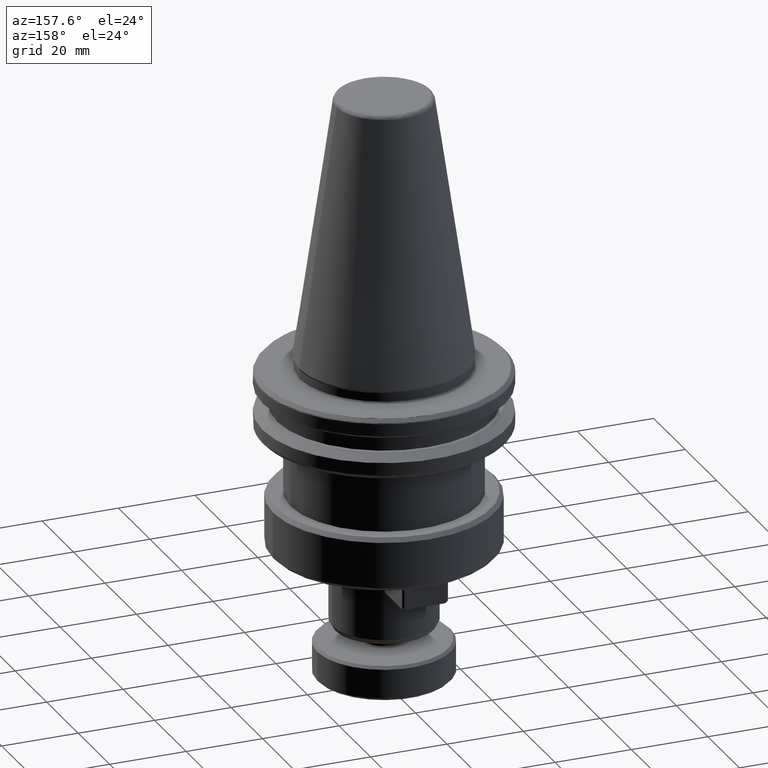
[diagram: clean part render]
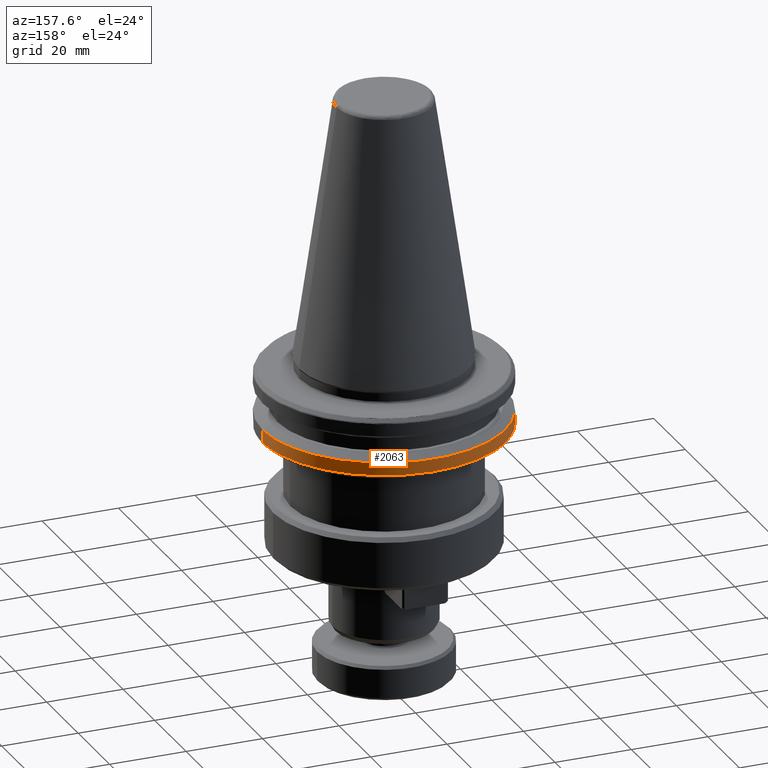
[diagram: same view with one face highlighted and labeled with its STEP entity id]
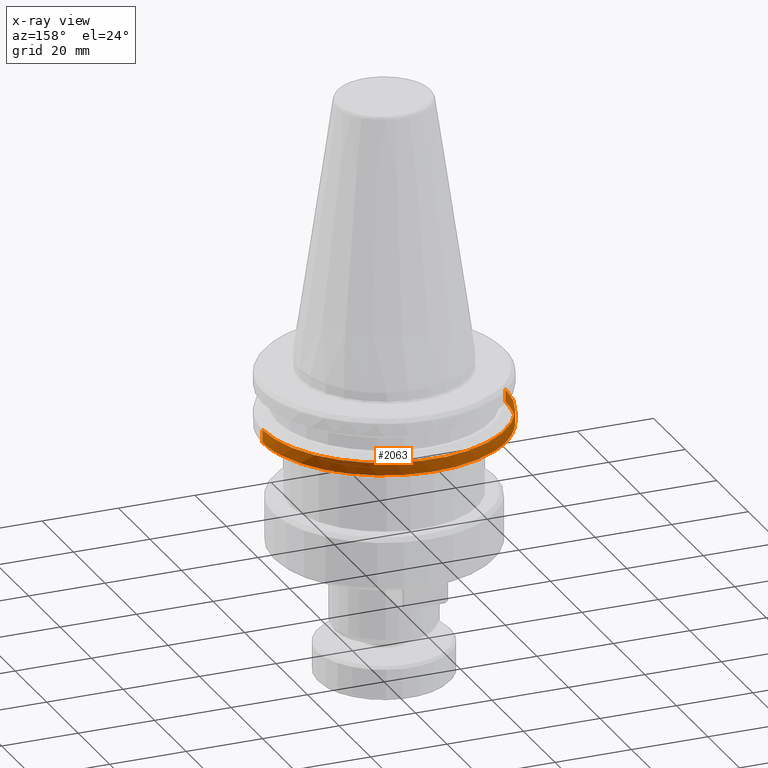
[diagram: x-ray of the same camera — body ghosted, the highlighted face saturated]
A machine part, auxiliary view. The second image highlights one B-rep face of the part: STEP entity #2063.
The next image is the same camera in x-ray: the body ghosted, the highlighted face saturated — about 1% of this face is hidden behind the body in this view.
In plain terms, the highlighted cylindrical surface (partial cylindrical patch) has radius 31.75 mm, axis along (0, 0, 1).
Its self-contained STEP definition (entity closure, byte-faithful):
#1 = CARTESIAN_POINT ( 'NONE',  ( 0.0000000000000000000, 0.0000000000000000000, -17.93431457505076300 ) ) ;
#156 = EDGE_CURVE ( 'NONE', #3901, #1664, #432, .T. ) ;
#310 = CARTESIAN_POINT ( 'NONE',  ( 0.0000000000000000000, 0.0000000000000000000, -14.62183664205671500 ) ) ;
#329 = CIRCLE ( 'NONE', #3080, 31.75000000000000000 ) ;
#351 = DIRECTION ( 'NONE',  ( 1.000000000000000000, 0.0000000000000000000, 0.0000000000000000000 ) ) ;
#371 = DIRECTION ( 'NONE',  ( 0.0000000000000000000, 0.0000000000000000000, 1.000000000000000000 ) ) ;
#393 = DIRECTION ( 'NONE',  ( 1.000000000000000000, 0.0000000000000000000, 0.0000000000000000000 ) ) ;
#432 = LINE ( 'NONE', #2344, #4053 ) ;
#612 = CIRCLE ( 'NONE', #1107, 31.75000000000000000 ) ;
#623 = VECTOR ( 'NONE', #848, 1000.000000000000000 ) ;
#707 = DIRECTION ( 'NONE',  ( -1.000000000000000000, 0.0000000000000000000, 0.0000000000000000000 ) ) ;
#745 = DIRECTION ( 'NONE',  ( 0.0000000000000000000, 0.0000000000000000000, 1.000000000000000000 ) ) ;
#823 = ORIENTED_EDGE ( 'NONE', *, *, #1435, .T. ) ;
#848 = DIRECTION ( 'NONE',  ( 0.0000000000000000000, 0.0000000000000000000, 1.000000000000000000 ) ) ;
#869 = CARTESIAN_POINT ( 'NONE',  ( -31.75000000000000000, 3.888253587292846500E-015, 113.5216080541959500 ) ) ;
#889 = ORIENTED_EDGE ( 'NONE', *, *, #1202, .T. ) ;
#916 = VERTEX_POINT ( 'NONE', #1339 ) ;
#957 = ORIENTED_EDGE ( 'NONE', *, *, #3920, .F. ) ;
#1056 = ORIENTED_EDGE ( 'NONE', *, *, #156, .F. ) ;
#1092 = CARTESIAN_POINT ( 'NONE',  ( -31.75000000000000700, 3.888253587292847300E-015, -14.62183664205671500 ) ) ;
#1107 = AXIS2_PLACEMENT_3D ( 'NONE', #1734, #1731, #1730 ) ;
#1128 = ORIENTED_EDGE ( 'NONE', *, *, #4033, .T. ) ;
#1181 = ORIENTED_EDGE ( 'NONE', *, *, #3608, .T. ) ;
#1202 = EDGE_CURVE ( 'NONE', #916, #1713, #1655, .T. ) ;
#1250 = ORIENTED_EDGE ( 'NONE', *, *, #2682, .T. ) ;
#1277 = CARTESIAN_POINT ( 'NONE',  ( 31.75000000000000700, 0.0000000000000000000, -14.62183664205671500 ) ) ;
#1339 = CARTESIAN_POINT ( 'NONE',  ( -31.75000000000000000, 3.888253587292846500E-015, -17.93431457505076300 ) ) ;
#1359 = ORIENTED_EDGE ( 'NONE', *, *, #1753, .T. ) ;
#1362 = CIRCLE ( 'NONE', #1735, 31.75000000000000700 ) ;
#1435 = EDGE_CURVE ( 'NONE', #4112, #916, #3734, .T. ) ;
#1443 = CARTESIAN_POINT ( 'NONE',  ( -18.49999999999999600, 25.80334280669851700, -17.93431457505076300 ) ) ;
#1630 = EDGE_LOOP ( 'NONE', ( #823, #889, #957, #1056, #1128, #1181, #1250, #1359 ) ) ;
#1655 = LINE ( 'NONE', #869, #623 ) ;
#1664 = VERTEX_POINT ( 'NONE', #1277 ) ;
#1686 = CIRCLE ( 'NONE', #3953, 31.75000000000000000 ) ;
#1713 = VERTEX_POINT ( 'NONE', #1092 ) ;
#1730 = DIRECTION ( 'NONE',  ( 1.000000000000000000, 0.0000000000000000000, 0.0000000000000000000 ) ) ;
#1731 = DIRECTION ( 'NONE',  ( -0.0000000000000000000, -0.0000000000000000000, 1.000000000000000000 ) ) ;
#1734 = CARTESIAN_POINT ( 'NONE',  ( 0.0000000000000000000, 0.0000000000000000000, -17.93431457505076300 ) ) ;
#1735 = AXIS2_PLACEMENT_3D ( 'NONE', #310, #2827, #707 ) ;
#1753 = EDGE_CURVE ( 'NONE', #3936, #4112, #329, .T. ) ;
#1783 = CARTESIAN_POINT ( 'NONE',  ( 31.75000000000000000, 0.0000000000000000000, -17.93431457505076300 ) ) ;
#2063 = ADVANCED_FACE ( 'NONE', ( #2317 ), #4020, .T. ) ;
#2144 = VERTEX_POINT ( 'NONE', #3575 ) ;
#2148 = CARTESIAN_POINT ( 'NONE',  ( 0.0000000000000000000, 0.0000000000000000000, -17.93431457505076300 ) ) ;
#2317 = FACE_OUTER_BOUND ( 'NONE', #1630, .T. ) ;
#2338 = DIRECTION ( 'NONE',  ( 0.0000000000000000000, 0.0000000000000000000, 1.000000000000000000 ) ) ;
#2344 = CARTESIAN_POINT ( 'NONE',  ( 31.75000000000000000, 0.0000000000000000000, 113.5216080541959500 ) ) ;
#2459 = AXIS2_PLACEMENT_3D ( 'NONE', #3746, #3732, #3729 ) ;
#2554 = DIRECTION ( 'NONE',  ( -0.0000000000000000000, -0.0000000000000000000, 1.000000000000000000 ) ) ;
#2682 = EDGE_CURVE ( 'NONE', #3334, #3936, #612, .T. ) ;
#2827 = DIRECTION ( 'NONE',  ( -0.0000000000000000000, -0.0000000000000000000, 1.000000000000000000 ) ) ;
#2862 = CIRCLE ( 'NONE', #2881, 31.75000000000000000 ) ;
#2866 = CARTESIAN_POINT ( 'NONE',  ( 0.0000000000000000000, 0.0000000000000000000, -17.93431457505076300 ) ) ;
#2881 = AXIS2_PLACEMENT_3D ( 'NONE', #1, #2554, #393 ) ;
#3080 = AXIS2_PLACEMENT_3D ( 'NONE', #2148, #371, #351 ) ;
#3235 = DIRECTION ( 'NONE',  ( 1.000000000000000000, 0.0000000000000000000, 0.0000000000000000000 ) ) ;
#3334 = VERTEX_POINT ( 'NONE', #1443 ) ;
#3544 = CARTESIAN_POINT ( 'NONE',  ( -25.80334280669851700, 18.50000000000000000, -17.93431457505076300 ) ) ;
#3575 = CARTESIAN_POINT ( 'NONE',  ( 30.56296919415016700, 8.600431037885714500, -17.93431457505076300 ) ) ;
#3608 = EDGE_CURVE ( 'NONE', #2144, #3334, #1686, .T. ) ;
#3694 = AXIS2_PLACEMENT_3D ( 'NONE', #3850, #3846, #3861 ) ;
#3729 = DIRECTION ( 'NONE',  ( 1.000000000000000000, 0.0000000000000000000, 0.0000000000000000000 ) ) ;
#3732 = DIRECTION ( 'NONE',  ( -0.0000000000000000000, -0.0000000000000000000, 1.000000000000000000 ) ) ;
#3734 = CIRCLE ( 'NONE', #2459, 31.75000000000000000 ) ;
#3746 = CARTESIAN_POINT ( 'NONE',  ( 0.0000000000000000000, 0.0000000000000000000, -17.93431457505076300 ) ) ;
#3846 = DIRECTION ( 'NONE',  ( 0.0000000000000000000, 0.0000000000000000000, 1.000000000000000000 ) ) ;
#3850 = CARTESIAN_POINT ( 'NONE',  ( 0.0000000000000000000, 0.0000000000000000000, 113.5216080541959500 ) ) ;
#3861 = DIRECTION ( 'NONE',  ( 1.000000000000000000, 0.0000000000000000000, 0.0000000000000000000 ) ) ;
#3901 = VERTEX_POINT ( 'NONE', #1783 ) ;
#3920 = EDGE_CURVE ( 'NONE', #1664, #1713, #1362, .T. ) ;
#3936 = VERTEX_POINT ( 'NONE', #3544 ) ;
#3953 = AXIS2_PLACEMENT_3D ( 'NONE', #2866, #745, #3235 ) ;
#3956 = CARTESIAN_POINT ( 'NONE',  ( -30.52966748735167000, 8.717907037342303800, -17.93431457505076300 ) ) ;
#4020 = CYLINDRICAL_SURFACE ( 'NONE', #3694, 31.75000000000000000 ) ;
#4033 = EDGE_CURVE ( 'NONE', #3901, #2144, #2862, .T. ) ;
#4053 = VECTOR ( 'NONE', #2338, 1000.000000000000000 ) ;
#4112 = VERTEX_POINT ( 'NONE', #3956 ) ;